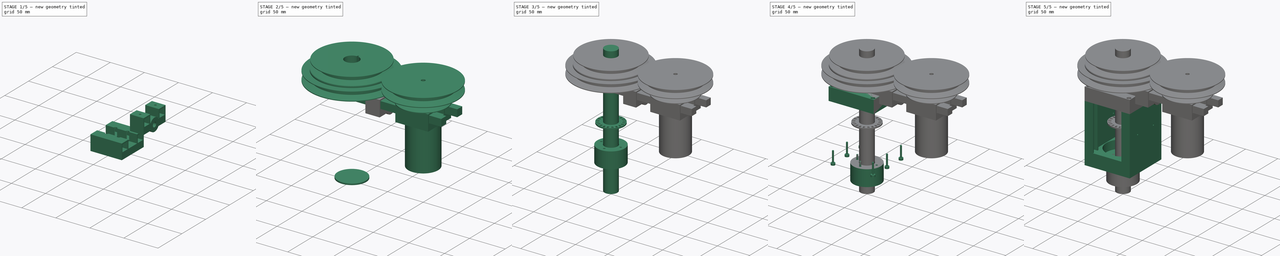
[diagram: build sequence overview — one tinted view per stage of 5, left to right]
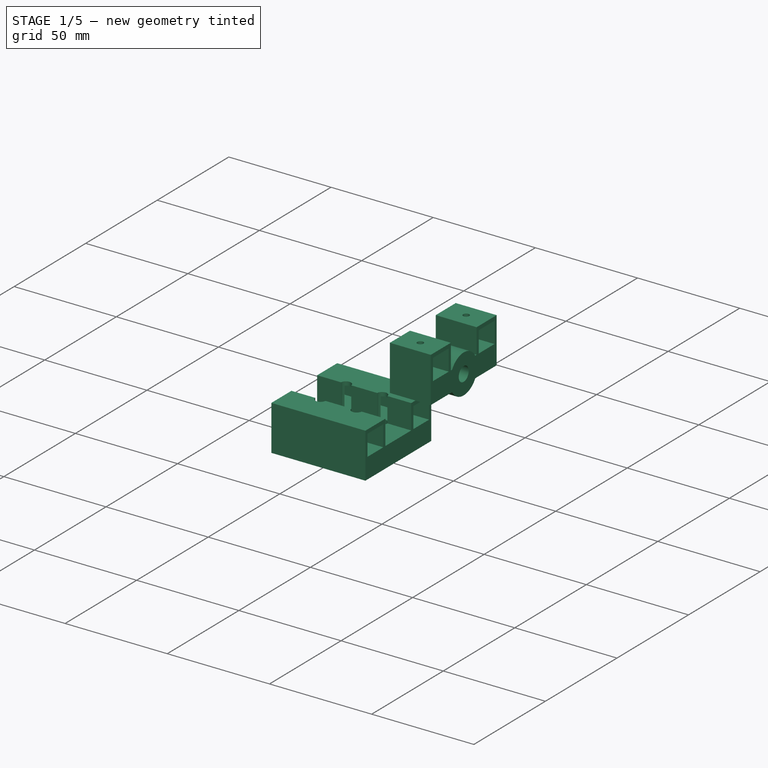
[diagram: stage 1 of 5 — iso view after this stage's code; geometry added in this stage tinted green]
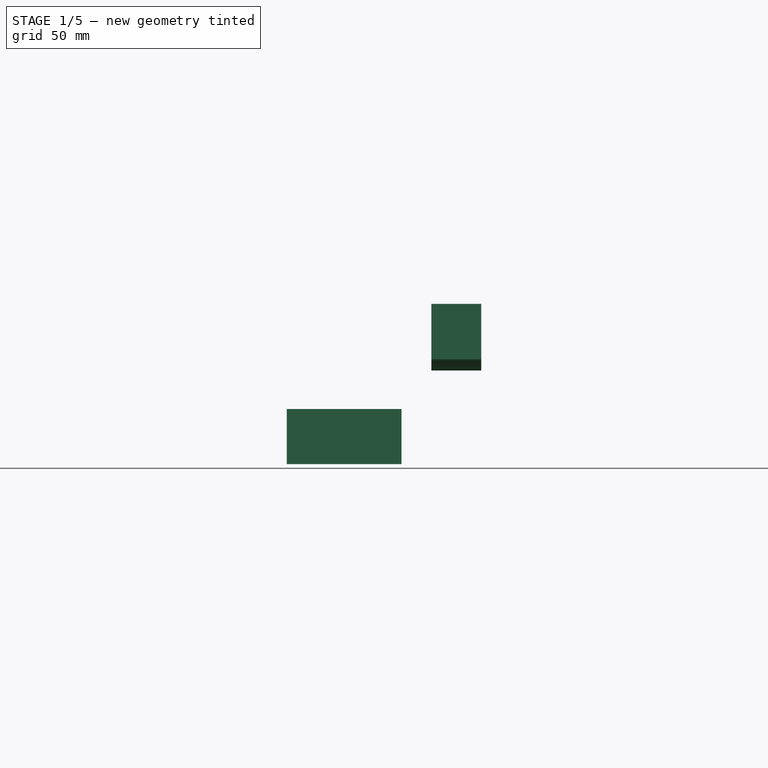
[diagram: stage 1 of 5 — front view after this stage's code; geometry added in this stage tinted green]
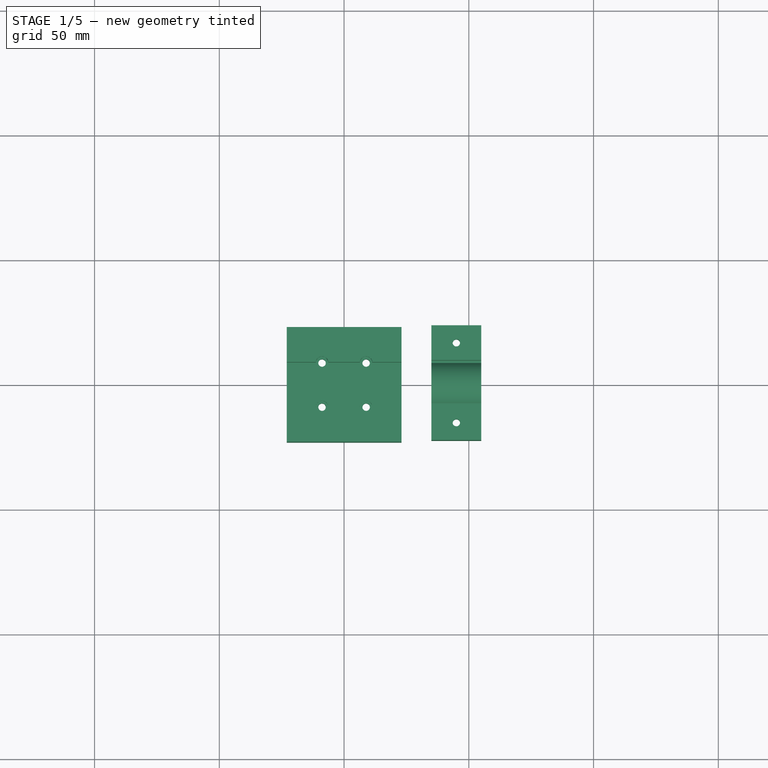
[diagram: stage 1 of 5 — top view after this stage's code; geometry added in this stage tinted green]
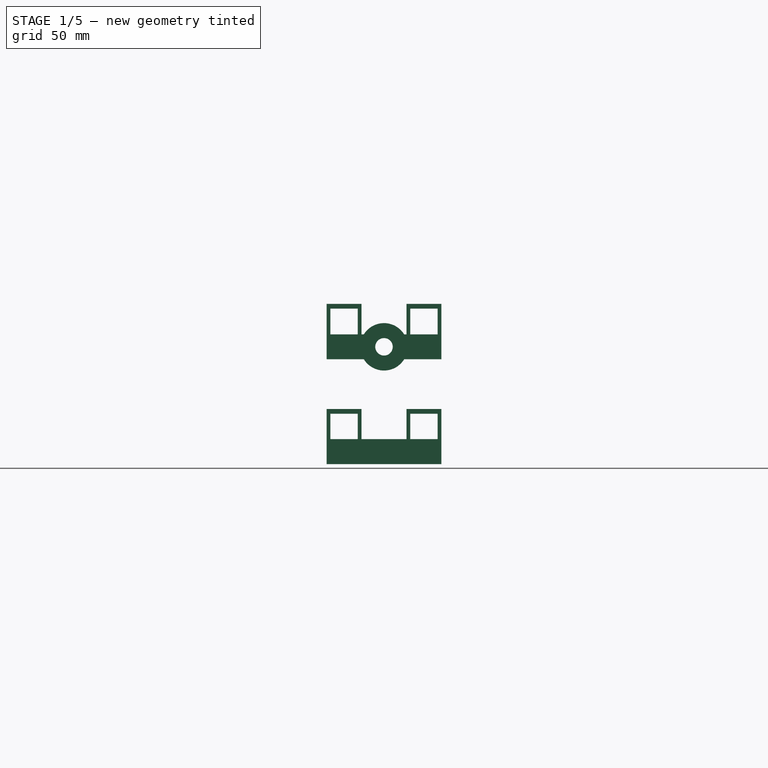
[diagram: stage 1 of 5 — right view after this stage's code; geometry added in this stage tinted green]
FCSTD DOCUMENT  (FreeCAD 0.18R16146 (Git))
Label: kombo
License: All rights reserved
LicenseURL: http://en.wikipedia.org/wiki/All_rights_reserved
objects: Part::Cylinder×95, Part::Cut×46, Part::MultiFuse×31, Part::Box×27, Part::Extrusion×20, Sketcher::SketchObject×5, Part::Revolution×4
note: 228 computed .brp shape members not serialized (recipe doc carries the construction recipe); baked Part::Feature solids carry a one-line shape summary decoded from their .brp

FEATURE [Part::Box] Box019  label="Würfel019"
  AttacherType = Attacher::AttachEngine3D
  Height = 10
  Length = 46
  Placement = pos=(-23,-23,58) rot=(0,0,1;0rad)
  Width = 46
FEATURE [Part::Cylinder] Cylinder079  label="Zylinder077"
  Angle = 360
  AttacherType = Attacher::AttachEngine3D
  Height = 10
  Placement = pos=(-12.5,0,58) rot=(0,0,1;0rad)
  Radius = 1.5
FEATURE [Part::Cylinder] Cylinder080  label="Zylinder078"
  Angle = 360
  AttacherType = Attacher::AttachEngine3D
  Height = 10
  Placement = pos=(12.5,0,58) rot=(0,0,1;0rad)
  Radius = 1.5
FEATURE [Part::Cylinder] Cylinder081  label="Zylinder079"
  Angle = 360
  AttacherType = Attacher::AttachEngine3D
  Height = 10
  Placement = pos=(0,12.5,58) rot=(0,0,1;0rad)
  Radius = 1.5
FEATURE [Part::Cylinder] Cylinder082  label="Zylinder080"
  Angle = 360
  AttacherType = Attacher::AttachEngine3D
  Height = 10
  Placement = pos=(0,-12.5,58) rot=(0,0,1;0rad)
  Radius = 1.5
FEATURE [Part::Cylinder] Cylinder083  label="Zylinder081"
  Angle = 360
  AttacherType = Attacher::AttachEngine3D
  Height = 2
  Placement = pos=(12.5,0,66) rot=(0,0,1;0rad)
  Radius = 2.5
FEATURE [Part::Cylinder] Cylinder084  label="Zylinder082"
  Angle = 360
  AttacherType = Attacher::AttachEngine3D
  Height = 2
  Placement = pos=(-12.5,0,66) rot=(0,0,1;0rad)
  Radius = 2.5
FEATURE [Part::Cylinder] Cylinder085  label="Zylinder083"
  Angle = 360
  AttacherType = Attacher::AttachEngine3D
  Height = 2
  Placement = pos=(0,12.5,66) rot=(0,0,1;0rad)
  Radius = 2.5
FEATURE [Part::Cylinder] Cylinder086  label="Zylinder084"
  Angle = 360
  AttacherType = Attacher::AttachEngine3D
  Height = 2
  Placement = pos=(0,-12.5,66) rot=(0,0,1;0rad)
  Radius = 2.5
FEATURE [Part::MultiFuse] Fusion023
  Placement = pos=(0,0,0) rot=(0,0,1;0.785398rad)
  Shapes = -> [Cylinder080,Cylinder083,Cylinder079,Cylinder084,Cylinder085,Cylinder086,Cylinder081,Cylinder082]
FEATURE [Part::Cut] Cut042
  Base = -> Box019
  Tool = -> Fusion023
FEATURE [Part::Box] Box020  label="Würfel020"
  AttacherType = Attacher::AttachEngine3D
  Height = 12.1
  Length = 46
  Placement = pos=(-23,9,68) rot=(0,0,1;0rad)
  Width = 14
FEATURE [Part::Box] Box022  label="Würfel022"
  AttacherType = Attacher::AttachEngine3D
  Height = 12.1
  Length = 46
  Placement = pos=(-23,-23,68) rot=(0,0,1;0rad)
  Width = 14
FEATURE [Part::Box] Box024  label="Würfel024"
  AttacherType = Attacher::AttachEngine3D
  Height = 10.2
  Length = 46
  Placement = pos=(-23,10.5,68) rot=(0,0,1;0rad)
  Width = 11
FEATURE [Part::Box] Box025  label="Würfel025"
  AttacherType = Attacher::AttachEngine3D
  Height = 10.2
  Length = 46
  Placement = pos=(-23,-21.5,68) rot=(0,0,1;0rad)
  Width = 11
FEATURE [Part::MultiFuse] Fusion025
  Shapes = -> [Box024,Box025]
FEATURE [Part::MultiFuse] Fusion026
  Shapes = -> [Box022,Box020]
FEATURE [Part::Cut] Cut044
  Base = -> Fusion026
  Tool = -> Fusion025
FEATURE [Part::Cylinder] Cylinder089  label="Zylinder086"
  Angle = 360
  AttacherType = Attacher::AttachEngine3D
  Height = 14
  Placement = pos=(12.5,0,68) rot=(0,0,1;0rad)
  Radius = 2.5
FEATURE [Part::Cylinder] Cylinder090  label="Zylinder087"
  Angle = 360
  AttacherType = Attacher::AttachEngine3D
  Height = 14
  Placement = pos=(-12.5,0,68) rot=(0,0,1;0rad)
  Radius = 2.5
FEATURE [Part::Cylinder] Cylinder091  label="Zylinder088"
  Angle = 360
  AttacherType = Attacher::AttachEngine3D
  Height = 14
  Placement = pos=(0,12.5,68) rot=(0,0,1;0rad)
  Radius = 2.5
FEATURE [Part::Cylinder] Cylinder092  label="Zylinder089"
  Angle = 360
  AttacherType = Attacher::AttachEngine3D
  Height = 14
  Placement = pos=(0,-12.5,68) rot=(0,0,1;0rad)
  Radius = 2.5
FEATURE [Part::MultiFuse] Fusion027
  Placement = pos=(0,0,0) rot=(0,0,1;0.785398rad)
  Shapes = -> [Cylinder089,Cylinder091,Cylinder092,Cylinder090]
FEATURE [Part::Cut] Cut045
  Base = -> Cut044
  Tool = -> Fusion027
FEATURE [Part::Box] Box026  label="Würfel026"
  AttacherType = Attacher::AttachEngine3D
  Height = 10
  Length = 20
  Placement = pos=(-23,-23,58) rot=(0,0,1;0rad)
  Width = 46
FEATURE [Part::Box] Box027  label="Würfel027"
  AttacherType = Attacher::AttachEngine3D
  Height = 12.2
  Length = 20
  Placement = pos=(-23,9,68) rot=(0,0,1;0rad)
  Width = 14
FEATURE [Part::Box] Box028  label="Würfel028"
  AttacherType = Attacher::AttachEngine3D
  Height = 12.2
  Length = 20
  Placement = pos=(-23,-23,68) rot=(0,0,1;0rad)
  Width = 14
FEATURE [Part::Box] Box029  label="Würfel029"
  AttacherType = Attacher::AttachEngine3D
  Height = 10.3
  Length = 20
  Placement = pos=(-23,10.5,68) rot=(0,0,1;0rad)
  Width = 11
FEATURE [Part::Box] Box030  label="Würfel030"
  AttacherType = Attacher::AttachEngine3D
  Height = 10.3
  Length = 20
  Placement = pos=(-23,-21.5,68) rot=(0,0,1;0rad)
  Width = 11
FEATURE [Part::Cylinder] Cylinder093  label="Zylinder090"
  Angle = 360
  AttacherType = Attacher::AttachEngine3D
  Height = 20
  Placement = pos=(-23,0,63) rot=(0,1,0;1.5708rad)
  Radius = 3.5
FEATURE [Part::Cylinder] Cylinder094  label="Zylinder091"
  Angle = 360
  AttacherType = Attacher::AttachEngine3D
  Height = 20
  Placement = pos=(-23,0,63) rot=(0,1,0;1.5708rad)
  Radius = 9.5
FEATURE [Part::MultiFuse] Fusion029
  Shapes = -> [Box028,Box027]
FEATURE [Part::MultiFuse] Fusion030
  Shapes = -> [Box029,Box030]
FEATURE [Part::Cut] Cut047
  Base = -> Fusion029
  Tool = -> Fusion030
FEATURE [Part::MultiFuse] Fusion031
  Shapes = -> [Box026,Cut047]
FEATURE [Part::MultiFuse] Fusion032
  Shapes = -> [Cylinder094,Fusion031]
FEATURE [Part::Cut] Cut048
  Base = -> Fusion032
  Tool = -> Cylinder093
FEATURE [Part::Cylinder] Cylinder095  label="Zylinder092"
  Angle = 360
  AttacherType = Attacher::AttachEngine3D
  Height = 25
  Radius = 1.5
FEATURE [Part::Cylinder] Cylinder096  label="Zylinder093"
  Angle = 360
  AttacherType = Attacher::AttachEngine3D
  Height = 4
  Radius = 3.5
FEATURE [Part::MultiFuse] Fusion033
  Placement = pos=(-13,-16,58) rot=(0,0,1;0rad)
  Shapes = -> [Cylinder095,Cylinder096]
FEATURE [Part::Cylinder] Cylinder097  label="Zylinder094"
  Angle = 360
  AttacherType = Attacher::AttachEngine3D
  Height = 4
  Radius = 3.5
FEATURE [Part::Cylinder] Cylinder098  label="Zylinder095"
  Angle = 360
  AttacherType = Attacher::AttachEngine3D
  Height = 25
  Radius = 1.5
FEATURE [Part::MultiFuse] Fusion034
  Placement = pos=(-13,16,58) rot=(0,0,1;0rad)
  Shapes = -> [Cylinder098,Cylinder097]
FEATURE [Part::MultiFuse] Fusion035
  Shapes = -> [Fusion033,Fusion034]
FEATURE [Part::Cut] Cut049  label="belt_tensioner"
  Base = -> Cut048
  Placement = pos=(58,0,42) rot=(0,0,1;0rad)
  Tool = -> Fusion035
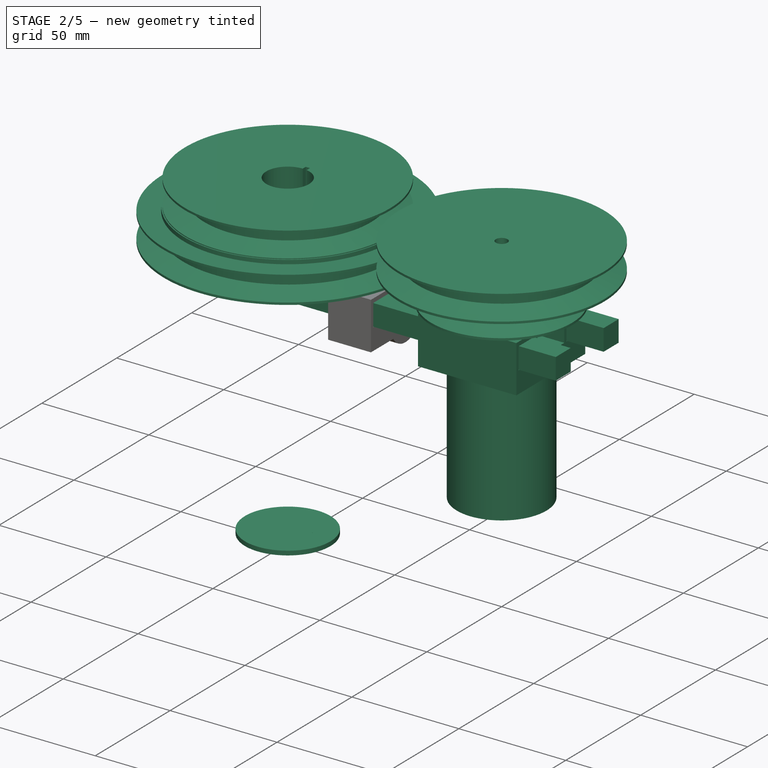
[diagram: stage 2 of 5 — iso view after this stage's code; geometry added in this stage tinted green]
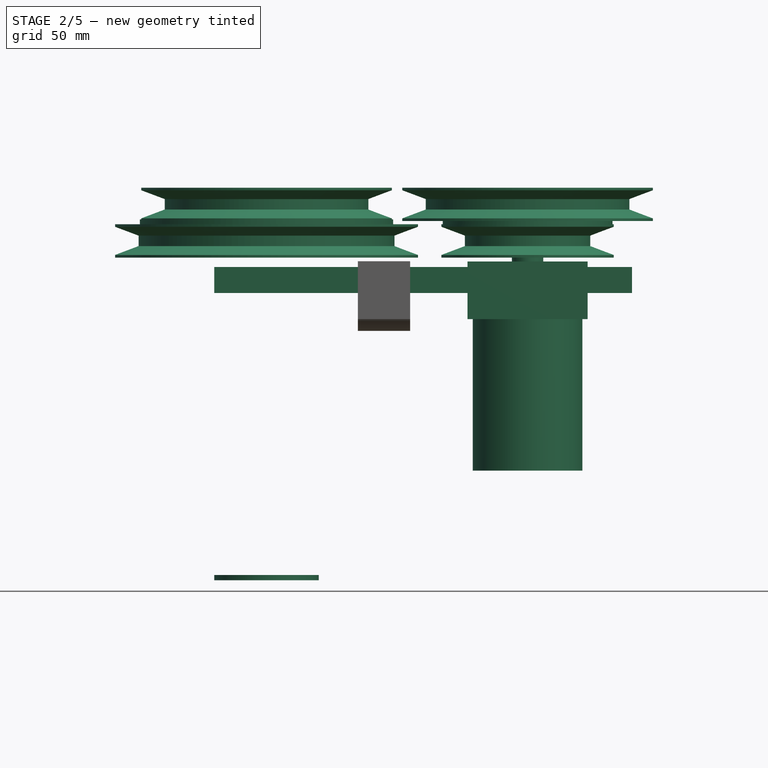
[diagram: stage 2 of 5 — front view after this stage's code; geometry added in this stage tinted green]
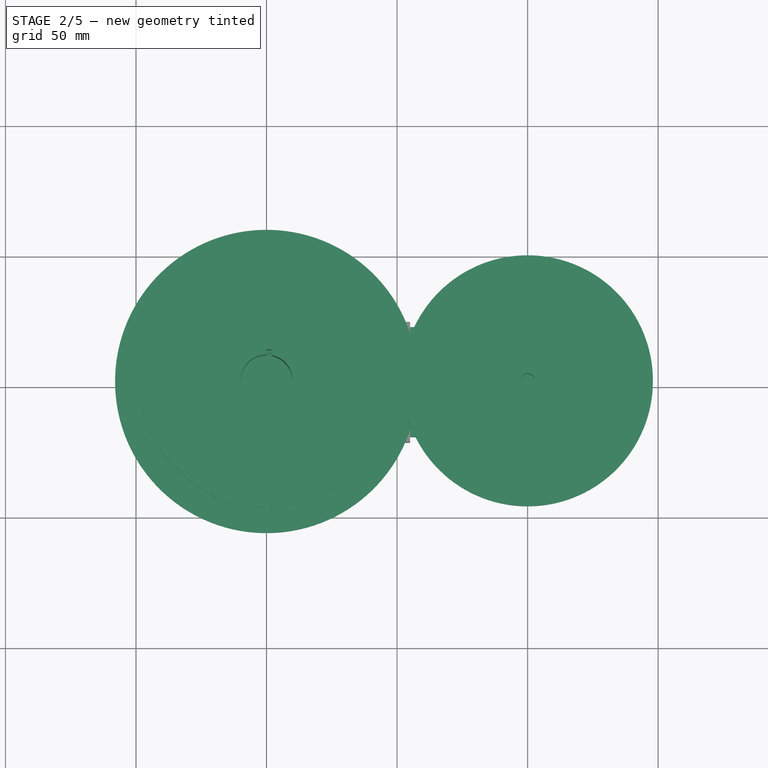
[diagram: stage 2 of 5 — top view after this stage's code; geometry added in this stage tinted green]
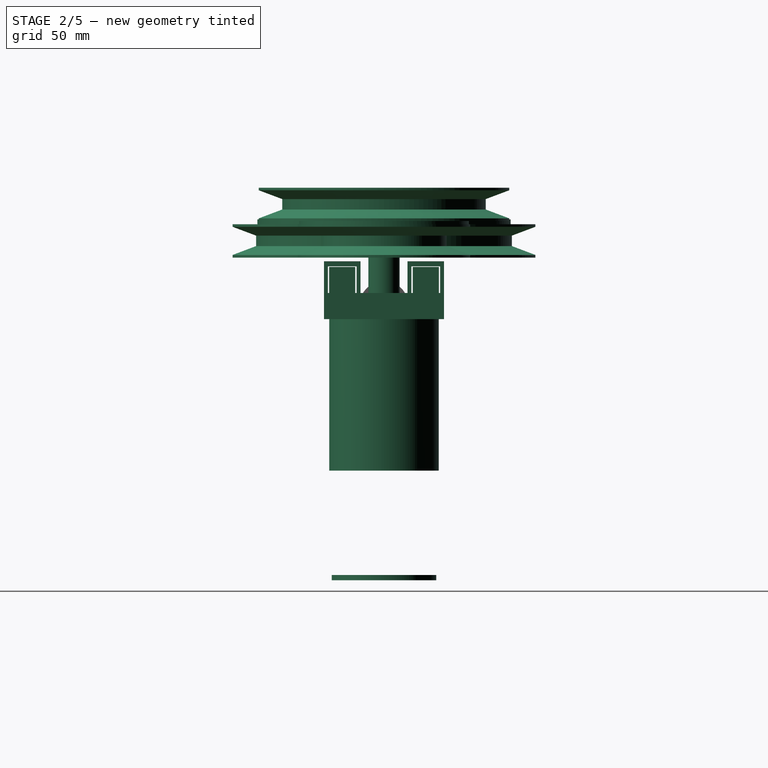
[diagram: stage 2 of 5 — right view after this stage's code; geometry added in this stage tinted green]
FEATURE [Part::Cylinder] Cylinder057  label="Zylinder056"
  Angle = 360
  AttacherType = Attacher::AttachEngine3D
  Height = 2
  Radius = 10.05
FEATURE [Part::Cylinder] Cylinder058  label="Zylinder057"
  Angle = 360
  AttacherType = Attacher::AttachEngine3D
  Height = 2
  Radius = 20
FEATURE [Sketcher::SketchObject] Sketch005  label="r40mm002"
  Placement = pos=(0,0,0) rot=(1,0,0;1.5708rad)
  sketch-geometry (8):
    g0: LineSegment StartX=-8 StartY=5.38155 StartZ=0 EndX=1 EndY=2 EndZ=0
    g1: LineSegment StartX=-8 StartY=-5.3979 StartZ=0 EndX=1 EndY=-2 EndZ=0
    g2: LineSegment StartX=1 StartY=-2 StartZ=0 EndX=1 EndY=2 EndZ=0
    g3: LineSegment StartX=-8 StartY=6.33661 StartZ=0 EndX=40 EndY=6.33661 EndZ=0
    g4: LineSegment StartX=-8 StartY=-6.40963 StartZ=0 EndX=40 EndY=-6.40963 EndZ=0
    g5: LineSegment StartX=40 StartY=-6.40963 StartZ=0 EndX=40 EndY=6.33661 EndZ=0
    g6: LineSegment StartX=-8 StartY=-5.3979 StartZ=0 EndX=-8 EndY=-6.40963 EndZ=0
    g7: LineSegment StartX=-8 StartY=5.38155 StartZ=0 EndX=-8 EndY=6.33661 EndZ=0
  constraints (13):
    c: Coincident(g2,g0)
    c: Vertical(g2)
    c: Horizontal(g3)
    c: Horizontal(g4)
    c: Coincident(g5,g4)
    c: Coincident(g5,g3)
    c: Vertical(g5)
    c: Coincident(g6,g1)
    c: Coincident(g6,g4)
    c: Vertical(g6)
    c: Coincident(g7,g0)
    c: Coincident(g7,g3)
    c: Vertical(g7)
FEATURE [Part::Revolution] Revolve006
  Angle = 360
  Axis = (0,0,1)
  AxisLink = -> Sketch005 [Edge6]
  Base = (40,0,6.33661)
  FaceMakerClass = Part::FaceMakerBullseye
  Placement = pos=(-40,0,0) rot=(0,0,1;0rad)
  Solid = true
  Source = -> Sketch005
  Symmetric = false
FEATURE [Part::Cylinder] Cylinder061  label="Zylinder060"
  Angle = 360
  AttacherType = Attacher::AttachEngine3D
  Height = 20
  Placement = pos=(0,0,-10) rot=(0,0,1;0rad)
  Radius = 10
FEATURE [Part::Cut] Cut034
  Base = -> Revolve006
  Tool = -> Cylinder061
FEATURE [Part::Box] Box014  label="Würfel014"
  AttacherType = Attacher::AttachEngine3D
  Height = 20
  Length = 2
  Placement = pos=(0,0,-10) rot=(0,0,1;0rad)
  Width = 12
FEATURE [Part::Cut] Cut033
  Base = -> Cut034
  Placement = pos=(0,0,14) rot=(0,0,1;0rad)
  Tool = -> Box014
FEATURE [Sketcher::SketchObject] Sketch006  label="r50mm001"
  Placement = pos=(0,0,0) rot=(1,0,0;1.5708rad)
  sketch-geometry (8):
    g0: LineSegment StartX=-8 StartY=5.38155 StartZ=0 EndX=1 EndY=2 EndZ=0
    g1: LineSegment StartX=-8 StartY=-5.3979 StartZ=0 EndX=1 EndY=-2 EndZ=0
    g2: LineSegment StartX=1 StartY=-2 StartZ=0 EndX=1 EndY=2 EndZ=0
    g3: LineSegment StartX=-8 StartY=6.33661 StartZ=0 EndX=50 EndY=6.33661 EndZ=0
    g4: LineSegment StartX=-8 StartY=-6.40963 StartZ=0 EndX=50 EndY=-6.40963 EndZ=0
    g5: LineSegment StartX=50 StartY=-6.40963 StartZ=0 EndX=50 EndY=6.33661 EndZ=0
    g6: LineSegment StartX=-8 StartY=-5.3979 StartZ=0 EndX=-8 EndY=-6.40963 EndZ=0
    g7: LineSegment StartX=-8 StartY=5.38155 StartZ=0 EndX=-8 EndY=6.33661 EndZ=0
  constraints (13):
    c: Coincident(g2,g0)
    c: Vertical(g2)
    c: Horizontal(g3)
    c: Horizontal(g4)
    c: Coincident(g5,g4)
    c: Coincident(g5,g3)
    c: Vertical(g5)
    c: Coincident(g6,g1)
    c: Coincident(g6,g4)
    c: Vertical(g6)
    c: Coincident(g7,g0)
    c: Coincident(g7,g3)
    c: Vertical(g7)
FEATURE [Part::Revolution] Revolve007
  Angle = 360
  Axis = (0,0,1)
  AxisLink = -> Sketch006 [Edge6]
  Base = (50,0,6.33661)
  FaceMakerClass = Part::FaceMakerBullseye
  Placement = pos=(-50,0,0) rot=(0,0,1;0rad)
  Solid = true
  Source = -> Sketch006
  Symmetric = false
FEATURE [Part::Cylinder] Cylinder064  label="Zylinder063"
  Angle = 360
  AttacherType = Attacher::AttachEngine3D
  Height = 20
  Placement = pos=(0,0,-10) rot=(0,0,1;0rad)
  Radius = 10
FEATURE [Part::Box] Box015  label="Würfel015"
  AttacherType = Attacher::AttachEngine3D
  Height = 20
  Length = 2
  Placement = pos=(0,0,-10) rot=(0,0,1;0rad)
  Width = 12
FEATURE [Part::MultiFuse] Fusion016
  Shapes = -> [Box015,Cylinder064]
FEATURE [Part::Cut] Cut032
  Base = -> Revolve007
  Tool = -> Fusion016
FEATURE [Part::Cylinder] Cylinder065  label="Zylinder064"
  Angle = 360
  AttacherType = Attacher::AttachEngine3D
  Height = 20
  Placement = pos=(0,0,-10) rot=(0,0,1;0rad)
  Radius = 10
FEATURE [Part::Box] Box016  label="Würfel016"
  AttacherType = Attacher::AttachEngine3D
  Height = 20
  Length = 2
  Placement = pos=(0,0,-10) rot=(0,0,1;0rad)
  Width = 12
FEATURE [Part::MultiFuse] Fusion015
  Shapes = -> [Cylinder065,Box016]
FEATURE [Part::Cylinder] Cylinder066  label="Zylinder065"
  Angle = 360
  AttacherType = Attacher::AttachEngine3D
  Height = 2
  Placement = pos=(0,0,0.2) rot=(0,0,1;0rad)
  Radius = 48.5
FEATURE [Part::Cut] Cut035  label="Dist_40mm"
  Base = -> Cylinder066
  Placement = pos=(0,0,6) rot=(0,0,1;0rad)
  Tool = -> Fusion015
FEATURE [Part::MultiFuse] Fusion017  label="r50r40"
  Placement = pos=(0,0,130) rot=(0,0,1;0rad)
  Shapes = -> [Cut035,Cut032,Cut033]
FEATURE [Sketcher::SketchObject] Sketch007  label="r40mm003"
  Placement = pos=(0,0,0) rot=(1,0,0;1.5708rad)
  sketch-geometry (8):
    g0: LineSegment StartX=-8 StartY=5.38155 StartZ=0 EndX=1 EndY=2 EndZ=0
    g1: LineSegment StartX=-8 StartY=-5.3979 StartZ=0 EndX=1 EndY=-2 EndZ=0
    g2: LineSegment StartX=1 StartY=-2 StartZ=0 EndX=1 EndY=2 EndZ=0
    g3: LineSegment StartX=-8 StartY=6.33661 StartZ=0 EndX=40 EndY=6.33661 EndZ=0
    g4: LineSegment StartX=-8 StartY=-6.40963 StartZ=0 EndX=40 EndY=-6.40963 EndZ=0
    g5: LineSegment StartX=40 StartY=-6.40963 StartZ=0 EndX=40 EndY=6.33661 EndZ=0
    g6: LineSegment StartX=-8 StartY=-5.3979 StartZ=0 EndX=-8 EndY=-6.40963 EndZ=0
    g7: LineSegment StartX=-8 StartY=5.38155 StartZ=0 EndX=-8 EndY=6.33661 EndZ=0
  constraints (13):
    c: Coincident(g2,g0)
    c: Vertical(g2)
    c: Horizontal(g3)
    c: Horizontal(g4)
    c: Coincident(g5,g4)
    c: Coincident(g5,g3)
    c: Vertical(g5)
    c: Coincident(g6,g1)
    c: Coincident(g6,g4)
    c: Vertical(g6)
    c: Coincident(g7,g0)
    c: Coincident(g7,g3)
    c: Vertical(g7)
FEATURE [Part::Revolution] Revolve008
  Angle = 360
  Axis = (0,0,1)
  AxisLink = -> Sketch007 [Edge6]
  Base = (40,0,6.33661)
  FaceMakerClass = Part::FaceMakerBullseye
  Placement = pos=(-40,0,0) rot=(0,0,1;0rad)
  Solid = true
  Source = -> Sketch007
  Symmetric = false
FEATURE [Part::Cylinder] Cylinder067  label="Zylinder066"
  Angle = 360
  AttacherType = Attacher::AttachEngine3D
  Height = 20
  Placement = pos=(0,0,-10) rot=(0,0,1;0rad)
  Radius = 2.75
FEATURE [Part::Cylinder] Cylinder069  label="Zylinder068"
  Angle = 360
  AttacherType = Attacher::AttachEngine3D
  Height = 20
  Placement = pos=(0,0,-10) rot=(0,0,1;0rad)
  Radius = 2.75
FEATURE [Part::Cylinder] Cylinder070  label="Zylinder069"
  Angle = 360
  AttacherType = Attacher::AttachEngine3D
  Height = 2
  Placement = pos=(0,0,0.2) rot=(0,0,1;0rad)
  Radius = 32.5
FEATURE [Part::Cut] Cut038  label="Dist_25mm"
  Base = -> Cylinder070
  Placement = pos=(0,0,6) rot=(0,0,1;0rad)
  Tool = -> Cylinder069
FEATURE [Sketcher::SketchObject] Sketch008  label="r25mm001"
  Placement = pos=(0,0,0) rot=(1,0,0;1.5708rad)
  sketch-geometry (8):
    g0: LineSegment StartX=-8 StartY=5.38155 StartZ=0 EndX=1 EndY=2 EndZ=0
    g1: LineSegment StartX=-8 StartY=-5.3979 StartZ=0 EndX=1 EndY=-2 EndZ=0
    g2: LineSegment StartX=1 StartY=-2 StartZ=0 EndX=1 EndY=2 EndZ=0
    g3: LineSegment StartX=-8 StartY=6.33661 StartZ=0 EndX=24.9919 EndY=6.33661 EndZ=0
    g4: LineSegment StartX=-8 StartY=-6.40963 StartZ=0 EndX=24.9919 EndY=-6.40963 EndZ=0
    g5: LineSegment StartX=24.9919 StartY=-6.40963 StartZ=0 EndX=24.9919 EndY=6.33661 EndZ=0
    g6: LineSegment StartX=-8 StartY=-5.3979 StartZ=0 EndX=-8 EndY=-6.40963 EndZ=0
    g7: LineSegment StartX=-8 StartY=5.38155 StartZ=0 EndX=-8 EndY=6.33661 EndZ=0
  constraints (13):
    c: Coincident(g2,g0)
    c: Vertical(g2)
    c: Horizontal(g3)
    c: Horizontal(g4)
    c: Coincident(g5,g4)
    c: Coincident(g5,g3)
    c: Vertical(g5)
    c: Coincident(g6,g1)
    c: Coincident(g6,g4)
    c: Vertical(g6)
    c: Coincident(g7,g0)
    c: Coincident(g7,g3)
    c: Vertical(g7)
FEATURE [Part::Revolution] Revolve009
  Angle = 360
  Axis = (0,0,1)
  AxisLink = -> Sketch008 [Edge6]
  Base = (24.9919,0,6.33661)
  FaceMakerClass = Part::FaceMakerBullseye
  Placement = pos=(-25,0,0) rot=(0,0,1;0rad)
  Solid = true
  Source = -> Sketch008
  Symmetric = false
FEATURE [Part::Cylinder] Cylinder072  label="Zylinder071"
  Angle = 360
  AttacherType = Attacher::AttachEngine3D
  Height = 10
  Placement = pos=(0,0,-7.8) rot=(0,0,1;0rad)
  Radius = 2.75
FEATURE [Part::Cut] Cut039
  Base = -> Revolve009
  Tool = -> Cylinder072
FEATURE [Part::Cut] Cut040
  Base = -> Revolve008
  Placement = pos=(0,0,14) rot=(0,0,1;0rad)
  Tool = -> Cylinder067
FEATURE [Part::MultiFuse] Fusion018  label="r25r40"
  Placement = pos=(100,0,130) rot=(0,0,1;0rad)
  Shapes = -> [Cut038,Cut040,Cut039]
FEATURE [Part::Box] Box017  label="Würfel017"
  AttacherType = Attacher::AttachEngine3D
  Height = 10
  Length = 160
  Placement = pos=(-20,11,110) rot=(0,0,1;0rad)
  Width = 10
FEATURE [Part::Box] Box018  label="Würfel018"
  AttacherType = Attacher::AttachEngine3D
  Height = 10
  Length = 160
  Placement = pos=(-20,-21,110) rot=(0,0,1;0rad)
  Width = 10
FEATURE [Part::Cylinder] Cylinder073  label="Zylinder072"
  Angle = 360
  AttacherType = Attacher::AttachEngine3D
  Height = 58
  Radius = 21
FEATURE [Part::Cylinder] Cylinder074  label="Zylinder073"
  Angle = 360
  AttacherType = Attacher::AttachEngine3D
  Height = 3
  Placement = pos=(12.5,0,55) rot=(0,0,1;0rad)
  Radius = 1.25
FEATURE [Part::Cylinder] Cylinder075  label="Zylinder074"
  Angle = 360
  AttacherType = Attacher::AttachEngine3D
  Height = 3
  Placement = pos=(-12.5,0,55) rot=(0,0,1;0rad)
  Radius = 1.25
FEATURE [Part::Cylinder] Cylinder076  label="Zylinder075"
  Angle = 360
  AttacherType = Attacher::AttachEngine3D
  Height = 3
  Placement = pos=(0,12.5,55) rot=(0,0,1;0rad)
  Radius = 1.25
FEATURE [Part::Cylinder] Cylinder077  label="Zylinder076"
  Angle = 360
  AttacherType = Attacher::AttachEngine3D
  Height = 3
  Placement = pos=(0,-12.5,55) rot=(0,0,1;0rad)
  Radius = 1.25
FEATURE [Part::MultiFuse] Fusion019
  Placement = pos=(0,0,0) rot=(0,0,1;0.785398rad)
  Shapes = -> [Cylinder074,Cylinder076,Cylinder075,Cylinder077]
FEATURE [Part::Cut] Cut041  label="housing"
  Base = -> Cylinder073
  Tool = -> Fusion019
FEATURE [Part::Cylinder] Cylinder078  label="axis001"
  Angle = 360
  AttacherType = Attacher::AttachEngine3D
  Height = 30
  Placement = pos=(0,0,58) rot=(0,0,1;0rad)
  Radius = 6
FEATURE [Part::MultiFuse] Fusion022  label="Motor"
  Placement = pos=(100,0,42) rot=(0,0,1;0rad)
  Shapes = -> [Cut041,Cylinder078]
FEATURE [Part::Cylinder] Cylinder087  label="axis002"
  Angle = 360
  AttacherType = Attacher::AttachEngine3D
  Height = 10
  Placement = pos=(0,0,58) rot=(0,0,1;0rad)
  Radius = 6
FEATURE [Part::Cut] Cut043
  Base = -> Cut042
  Tool = -> Cylinder087
FEATURE [Part::Cylinder] Cylinder088  label="Zylinder085"
  Angle = 360
  AttacherType = Attacher::AttachEngine3D
  Height = 24
  Placement = pos=(-23,0,63) rot=(0,1,0;1.5708rad)
  Radius = 2.1
FEATURE [Part::MultiFuse] Fusion028
  Shapes = -> [Cut043,Cut045]
FEATURE [Part::Cut] Cut046  label="Motor_Mount"
  Base = -> Fusion028
  Placement = pos=(100,0,42) rot=(0,0,1;0rad)
  Tool = -> Cylinder088
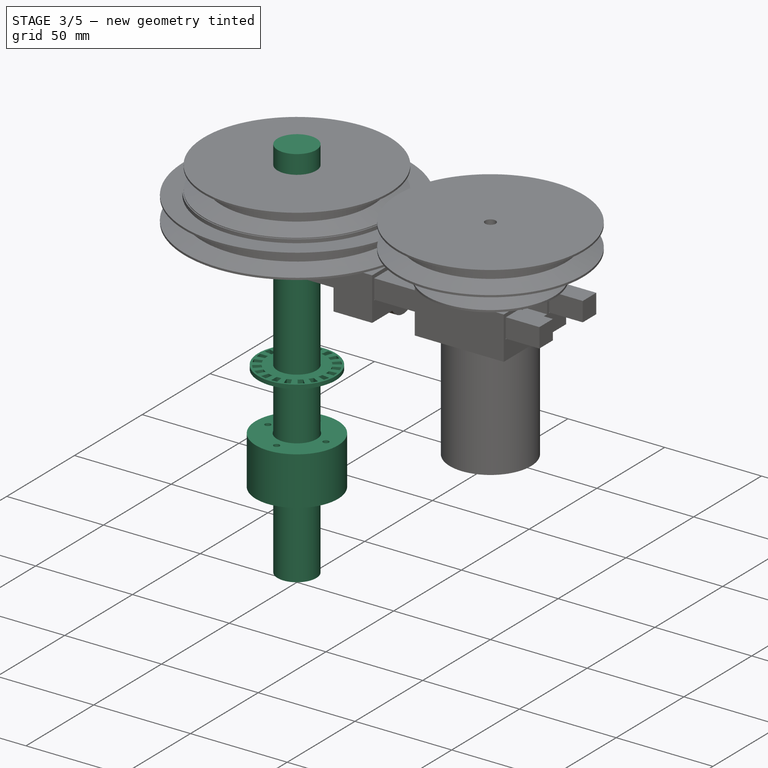
[diagram: stage 3 of 5 — iso view after this stage's code; geometry added in this stage tinted green]
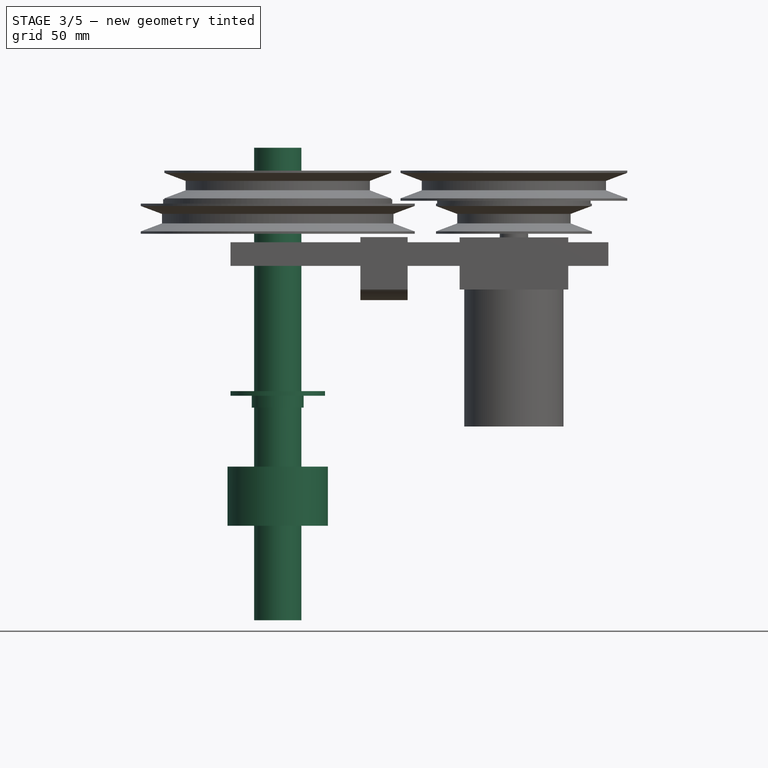
[diagram: stage 3 of 5 — front view after this stage's code; geometry added in this stage tinted green]
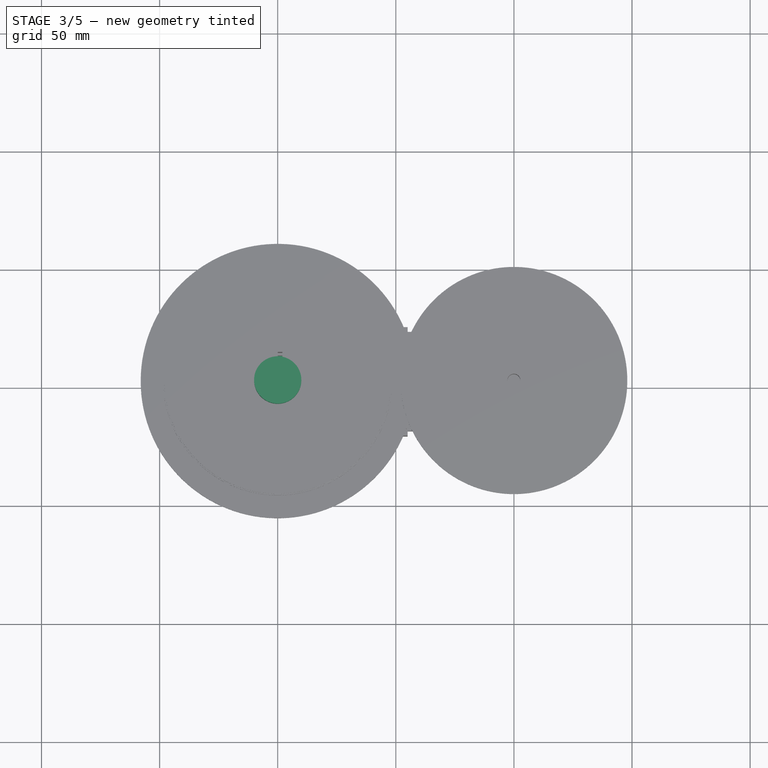
[diagram: stage 3 of 5 — top view after this stage's code; geometry added in this stage tinted green]
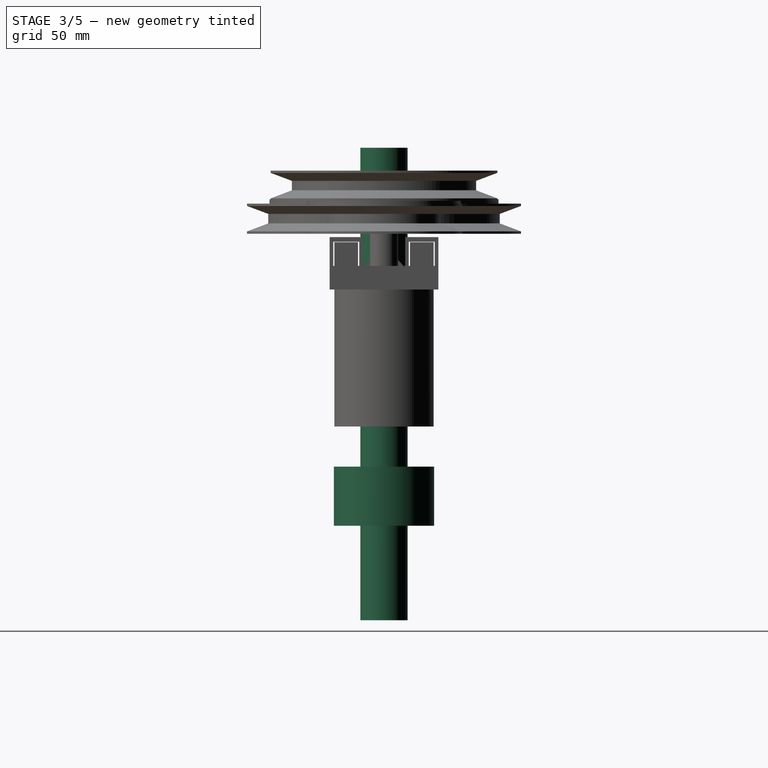
[diagram: stage 3 of 5 — right view after this stage's code; geometry added in this stage tinted green]
FEATURE [Part::Cylinder] Cylinder046  label="Zylinder046"
  Angle = 360
  AttacherType = Attacher::AttachEngine3D
  Height = 25
  Placement = pos=(-15,0,0) rot=(0,0,1;0rad)
  Radius = 1.5
FEATURE [Part::Cylinder] Cylinder047  label="Zylinder047"
  Angle = 360
  AttacherType = Attacher::AttachEngine3D
  Height = 25
  Placement = pos=(15,0,0) rot=(0,0,1;0rad)
  Radius = 1.5
FEATURE [Part::Cylinder] Cylinder048  label="Zylinder048"
  Angle = 360
  AttacherType = Attacher::AttachEngine3D
  Height = 25
  Radius = 21.25
FEATURE [Part::Cylinder] Cylinder049  label="Zylinder049"
  Angle = 360
  AttacherType = Attacher::AttachEngine3D
  Height = 25
  Placement = pos=(0,-15,0) rot=(0,0,1;0rad)
  Radius = 1.5
FEATURE [Part::Cylinder] Cylinder050  label="Zylinder050"
  Angle = 360
  AttacherType = Attacher::AttachEngine3D
  Height = 25
  Placement = pos=(0,15,0) rot=(0,0,1;0rad)
  Radius = 1.5
FEATURE [Part::Cylinder] Cylinder051  label="Zylinder051"
  Angle = 360
  AttacherType = Attacher::AttachEngine3D
  Height = 25
  Radius = 10.25
FEATURE [Part::Cut] Cut020
  Base = -> Cylinder048
  Tool = -> Cylinder051
FEATURE [Part::Cut] Cut024
  Base = -> Cut020
  Tool = -> Cylinder047
FEATURE [Part::Cut] Cut021
  Base = -> Cut024
  Tool = -> Cylinder050
FEATURE [Part::Cut] Cut018
  Base = -> Cut021
  Tool = -> Cylinder046
FEATURE [Part::Cut] Cut019
  Base = -> Cut018
  Tool = -> Cylinder049
FEATURE [Part::Cylinder] Cylinder052  label="Zylinder052"
  Angle = 360
  AttacherType = Attacher::AttachEngine3D
  Height = 5
  Placement = pos=(15,0,0) rot=(0,0,1;0rad)
  Radius = 3
FEATURE [Part::Cut] Cut022
  Base = -> Cut019
  Tool = -> Cylinder052
FEATURE [Part::Cylinder] Cylinder054  label="Zylinder054"
  Angle = 360
  AttacherType = Attacher::AttachEngine3D
  Height = 5
  Placement = pos=(-15,0,0) rot=(0,0,1;0rad)
  Radius = 3
FEATURE [Part::Cylinder] Cylinder055  label="Zylinder055"
  Angle = 360
  AttacherType = Attacher::AttachEngine3D
  Height = 5
  Placement = pos=(0,-15,0) rot=(0,0,1;0rad)
  Radius = 3
FEATURE [Part::Cut] Cut023
  Base = -> Cut022
  Tool = -> Cylinder055
FEATURE [Part::Cut] Cut025
  Base = -> Cut023
  Tool = -> Cylinder054
FEATURE [Part::Cylinder] Cylinder056  label="axis"
  Angle = 360
  AttacherType = Attacher::AttachEngine3D
  Height = 200
  Placement = pos=(0,0,-40) rot=(0,0,1;0rad)
  Radius = 10
FEATURE [Part::Cylinder] Cylinder059  label="Zylinder058"
  Angle = 360
  AttacherType = Attacher::AttachEngine3D
  Height = 5
  Placement = pos=(40,0,0) rot=(0,0,1;0rad)
  Radius = 10
FEATURE [Part::Cylinder] Cylinder060  label="Zylinder059"
  Angle = 360
  AttacherType = Attacher::AttachEngine3D
  Height = 5
  Placement = pos=(40,0,0) rot=(0,0,1;0rad)
  Radius = 11
FEATURE [Part::Cut] Cut028
  Base = -> Cylinder060
  Placement = pos=(-40,0,-5) rot=(0,0,1;0rad)
  Tool = -> Cylinder059
FEATURE [Sketcher::SketchObject] Sketch004
  sketch-geometry (8):
    g0: ArcOfCircle CenterX=0 CenterY=0 CenterZ=0 NormalX=0 NormalY=0 NormalZ=1 AngleXU=0 Radius=19 StartAngle=0 EndAngle=0.15708
    g1: LineSegment StartX=19 StartY=0 StartZ=0 EndX=15 EndY=0 EndZ=0
    g2: LineSegment StartX=18.7661 StartY=2.97225 StartZ=0 EndX=14.8153 EndY=2.34652 EndZ=0
    g3: ArcOfCircle CenterX=0 CenterY=0 CenterZ=0 NormalX=0 NormalY=0 NormalZ=1 AngleXU=0 Radius=15 StartAngle=0 EndAngle=0.15708
    g4: GeomPoint X=14.8153 Y=2.34652 Z=0
    g5: GeomPoint X=15 Y=0 Z=0
    g6: GeomPoint X=19.0173 Y=-0.000551 Z=0
    g7: GeomPoint X=18.7661 Y=2.97226 Z=0
FEATURE [Part::Extrusion] Extrude
  Base = -> Sketch004
  Dir = (0,0,1)
  DirMode = 2
  FaceMakerClass = Part::FaceMakerBullseye
  LengthFwd = 3
  LengthRev = 0
  Solid = true
  Symmetric = false
FEATURE [Part::Extrusion] Extrude001
  Base = -> Sketch004
  Dir = (0,0,1)
  DirMode = 2
  FaceMakerClass = Part::FaceMakerBullseye
  LengthFwd = 3
  LengthRev = 0
  Placement = pos=(0,0,0) rot=(0,0,1;0.314159rad)
  Solid = true
  Symmetric = false
FEATURE [Part::Extrusion] Extrude002
  Base = -> Sketch004
  Dir = (0,0,1)
  DirMode = 2
  FaceMakerClass = Part::FaceMakerBullseye
  LengthFwd = 3
  LengthRev = 0
  Placement = pos=(0,0,0) rot=(0,0,1;0.628319rad)
  Solid = true
  Symmetric = false
FEATURE [Part::Extrusion] Extrude003
  Base = -> Sketch004
  Dir = (0,0,1)
  DirMode = 2
  FaceMakerClass = Part::FaceMakerBullseye
  LengthFwd = 3
  LengthRev = 0
  Placement = pos=(0,0,0) rot=(0,0,1;0.942478rad)
  Solid = true
  Symmetric = false
FEATURE [Part::Extrusion] Extrude004
  Base = -> Sketch004
  Dir = (0,0,1)
  DirMode = 2
  FaceMakerClass = Part::FaceMakerBullseye
  LengthFwd = 3
  LengthRev = 0
  Placement = pos=(0,0,0) rot=(0,0,1;1.25664rad)
  Solid = true
  Symmetric = false
FEATURE [Part::Extrusion] Extrude005
  Base = -> Sketch004
  Dir = (0,0,1)
  DirMode = 2
  FaceMakerClass = Part::FaceMakerBullseye
  LengthFwd = 3
  LengthRev = 0
  Placement = pos=(0,0,0) rot=(0,0,1;1.5708rad)
  Solid = true
  Symmetric = false
FEATURE [Part::Extrusion] Extrude006
  Base = -> Sketch004
  Dir = (0,0,1)
  DirMode = 2
  FaceMakerClass = Part::FaceMakerBullseye
  LengthFwd = 3
  LengthRev = 0
  Placement = pos=(0,0,0) rot=(0,0,1;1.88496rad)
  Solid = true
  Symmetric = false
FEATURE [Part::Extrusion] Extrude007
  Base = -> Sketch004
  Dir = (0,0,1)
  DirMode = 2
  FaceMakerClass = Part::FaceMakerBullseye
  LengthFwd = 3
  LengthRev = 0
  Placement = pos=(0,0,0) rot=(0,0,1;2.19911rad)
  Solid = true
  Symmetric = false
FEATURE [Part::Extrusion] Extrude008
  Base = -> Sketch004
  Dir = (0,0,1)
  DirMode = 2
  FaceMakerClass = Part::FaceMakerBullseye
  LengthFwd = 3
  LengthRev = 0
  Placement = pos=(0,0,0) rot=(0,0,1;2.51327rad)
  Solid = true
  Symmetric = false
FEATURE [Part::Extrusion] Extrude009
  Base = -> Sketch004
  Dir = (0,0,1)
  DirMode = 2
  FaceMakerClass = Part::FaceMakerBullseye
  LengthFwd = 3
  LengthRev = 0
  Placement = pos=(0,0,0) rot=(0,0,1;2.82743rad)
  Solid = true
  Symmetric = false
FEATURE [Part::Extrusion] Extrude010
  Base = -> Sketch004
  Dir = (0,0,1)
  DirMode = 2
  FaceMakerClass = Part::FaceMakerBullseye
  LengthFwd = 3
  LengthRev = 0
  Placement = pos=(0,0,0) rot=(0,0,1;3.14159rad)
  Solid = true
  Symmetric = false
FEATURE [Part::Extrusion] Extrude011
  Base = -> Sketch004
  Dir = (0,0,1)
  DirMode = 2
  FaceMakerClass = Part::FaceMakerBullseye
  LengthFwd = 3
  LengthRev = 0
  Placement = pos=(0,0,0) rot=(0,0,1;3.45575rad)
  Solid = true
  Symmetric = false
FEATURE [Part::Extrusion] Extrude012
  Base = -> Sketch004
  Dir = (0,0,1)
  DirMode = 2
  FaceMakerClass = Part::FaceMakerBullseye
  LengthFwd = 3
  LengthRev = 0
  Placement = pos=(0,0,0) rot=(0,0,1;3.76991rad)
  Solid = true
  Symmetric = false
FEATURE [Part::Extrusion] Extrude013
  Base = -> Sketch004
  Dir = (0,0,1)
  DirMode = 2
  FaceMakerClass = Part::FaceMakerBullseye
  LengthFwd = 3
  LengthRev = 0
  Placement = pos=(0,0,0) rot=(0,0,1;4.08407rad)
  Solid = true
  Symmetric = false
FEATURE [Part::Extrusion] Extrude014
  Base = -> Sketch004
  Dir = (0,0,1)
  DirMode = 2
  FaceMakerClass = Part::FaceMakerBullseye
  LengthFwd = 3
  LengthRev = 0
  Placement = pos=(0,0,0) rot=(0,0,-1;1.88496rad)
  Solid = true
  Symmetric = false
FEATURE [Part::Extrusion] Extrude015
  Base = -> Sketch004
  Dir = (0,0,1)
  DirMode = 2
  FaceMakerClass = Part::FaceMakerBullseye
  LengthFwd = 3
  LengthRev = 0
  Placement = pos=(0,0,0) rot=(0,0,-1;1.5708rad)
  Solid = true
  Symmetric = false
FEATURE [Part::Extrusion] Extrude016
  Base = -> Sketch004
  Dir = (0,0,1)
  DirMode = 2
  FaceMakerClass = Part::FaceMakerBullseye
  LengthFwd = 3
  LengthRev = 0
  Placement = pos=(0,0,0) rot=(0,0,-1;1.25664rad)
  Solid = true
  Symmetric = false
FEATURE [Part::Extrusion] Extrude017
  Base = -> Sketch004
  Dir = (0,0,1)
  DirMode = 2
  FaceMakerClass = Part::FaceMakerBullseye
  LengthFwd = 3
  LengthRev = 0
  Placement = pos=(0,0,0) rot=(0,0,-1;0.942478rad)
  Solid = true
  Symmetric = false
FEATURE [Part::Extrusion] Extrude018
  Base = -> Sketch004
  Dir = (0,0,1)
  DirMode = 2
  FaceMakerClass = Part::FaceMakerBullseye
  LengthFwd = 3
  LengthRev = 0
  Placement = pos=(0,0,0) rot=(0,0,-1;0.628319rad)
  Solid = true
  Symmetric = false
FEATURE [Part::Extrusion] Extrude019
  Base = -> Sketch004
  Dir = (0,0,1)
  DirMode = 2
  FaceMakerClass = Part::FaceMakerBullseye
  LengthFwd = 3
  LengthRev = 0
  Placement = pos=(0,0,0) rot=(0,0,-1;0.314159rad)
  Solid = true
  Symmetric = false
FEATURE [Part::MultiFuse] Fusion013
  Shapes = -> [Extrude001,Extrude011,Extrude012,Extrude005,Extrude007,Extrude008,Extrude006,Extrude003,Extrude004,Extrude002,Extrude010,Extrude009,Extrude016,Extrude019,Extrude018,Extrude015,Extrude017,Extrude014,Extrude013,Extrude]
FEATURE [Part::Cut] Cut029
  Base = -> Cylinder058
  Tool = -> Cylinder057
FEATURE [Part::Cut] Cut027
  Base = -> Cut029
  Tool = -> Fusion013
FEATURE [Part::MultiFuse] Fusion014  label="decoder_ring"
  Placement = pos=(0,0,55) rot=(0,0,1;0rad)
  Shapes = -> [Cut027,Cut028]
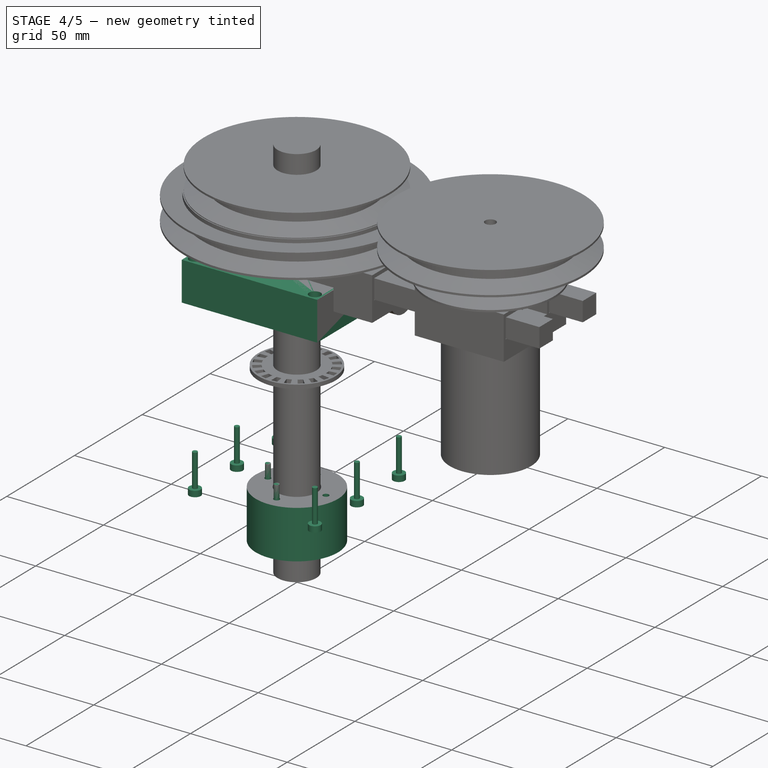
[diagram: stage 4 of 5 — iso view after this stage's code; geometry added in this stage tinted green]
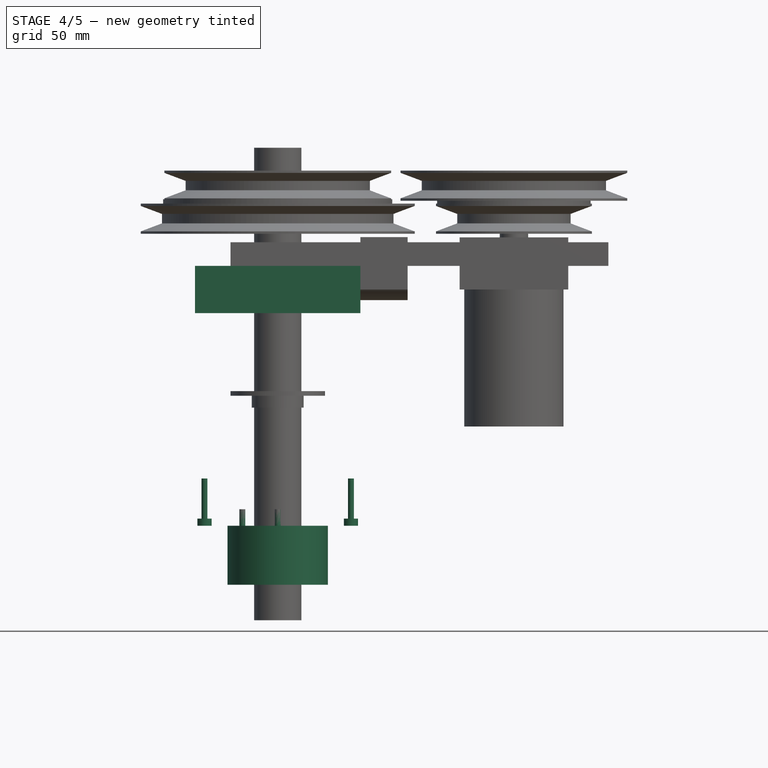
[diagram: stage 4 of 5 — front view after this stage's code; geometry added in this stage tinted green]
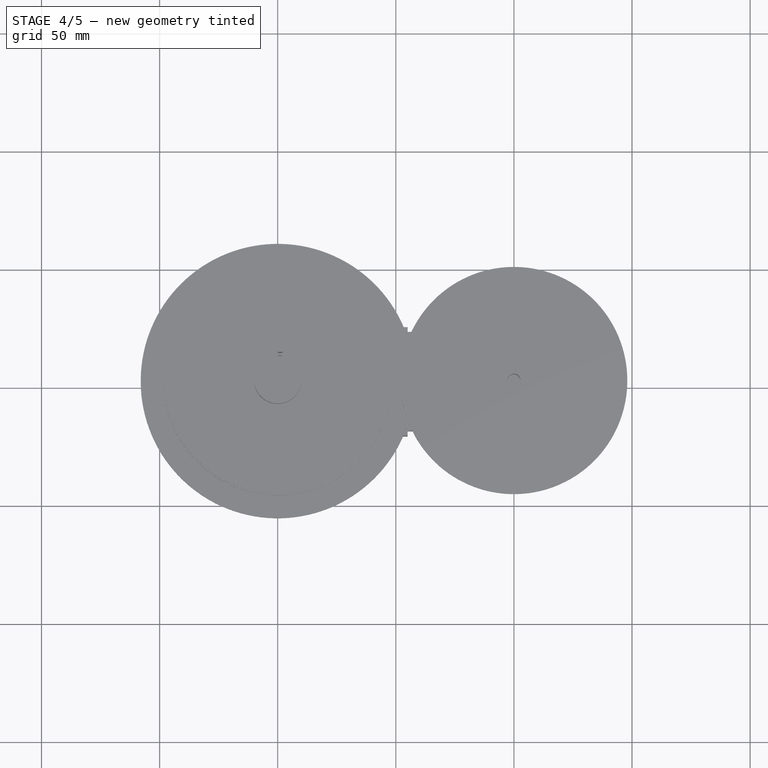
[diagram: stage 4 of 5 — top view after this stage's code; geometry added in this stage tinted green]
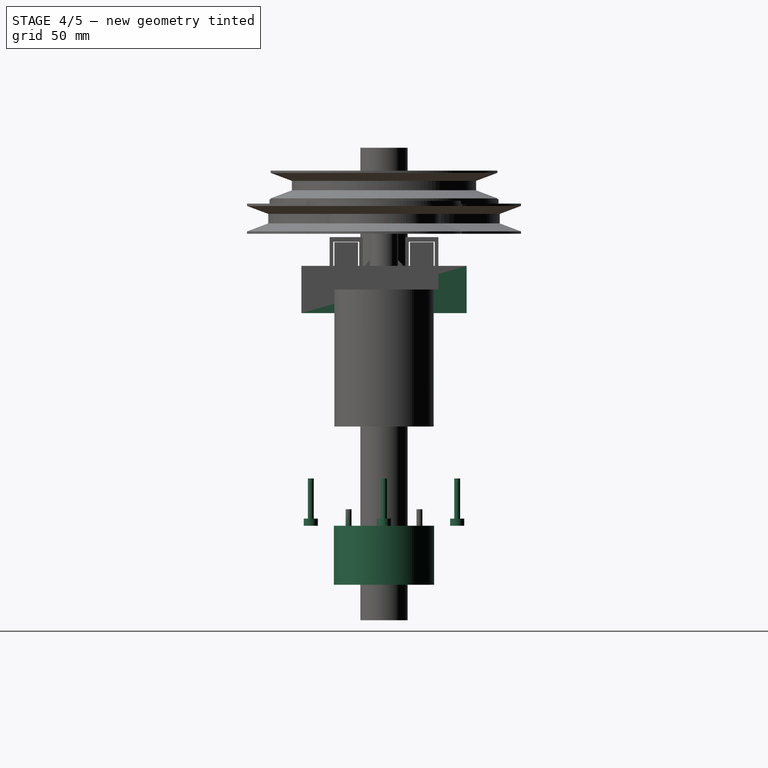
[diagram: stage 4 of 5 — right view after this stage's code; geometry added in this stage tinted green]
FEATURE [Part::Cylinder] Cylinder013  label="Zylinder013"
  Angle = 360
  AttacherType = Attacher::AttachEngine3D
  Height = 7
  Placement = pos=(-15,0,0) rot=(0,0,1;0rad)
  Radius = 1.25
FEATURE [Part::Cylinder] Cylinder014  label="Zylinder014"
  Angle = 360
  AttacherType = Attacher::AttachEngine3D
  Height = 7
  Placement = pos=(0,15,0) rot=(0,0,1;0rad)
  Radius = 1.25
FEATURE [Part::Cylinder] Cylinder015  label="Zylinder015"
  Angle = 360
  AttacherType = Attacher::AttachEngine3D
  Height = 7
  Placement = pos=(0,-15,0) rot=(0,0,1;0rad)
  Radius = 1.25
FEATURE [Part::Cylinder] Cylinder016  label="Zylinder016"
  Angle = 360
  AttacherType = Attacher::AttachEngine3D
  Height = 20
  Placement = pos=(31,31,0) rot=(0,0,1;0rad)
  Radius = 1.25
FEATURE [Part::Cylinder] Cylinder017  label="Zylinder017"
  Angle = 360
  AttacherType = Attacher::AttachEngine3D
  Height = 20
  Placement = pos=(31,0,0) rot=(0,0,1;0rad)
  Radius = 1.25
FEATURE [Part::Cylinder] Cylinder018  label="Zylinder018"
  Angle = 360
  AttacherType = Attacher::AttachEngine3D
  Height = 20
  Placement = pos=(31,-31,0) rot=(0,0,1;0rad)
  Radius = 1.25
FEATURE [Part::Cylinder] Cylinder019  label="Zylinder019"
  Angle = 360
  AttacherType = Attacher::AttachEngine3D
  Height = 20
  Placement = pos=(-31,31,0) rot=(0,0,1;0rad)
  Radius = 1.25
FEATURE [Part::Cylinder] Cylinder020  label="Zylinder020"
  Angle = 360
  AttacherType = Attacher::AttachEngine3D
  Height = 20
  Placement = pos=(-31,-31,0) rot=(0,0,1;0rad)
  Radius = 1.25
FEATURE [Part::Cylinder] Cylinder021  label="Zylinder021"
  Angle = 360
  AttacherType = Attacher::AttachEngine3D
  Height = 20
  Placement = pos=(-31,0,0) rot=(0,0,1;0rad)
  Radius = 1.25
FEATURE [Part::Cylinder] Cylinder022  label="Zylinder022"
  Angle = 360
  AttacherType = Attacher::AttachEngine3D
  Height = 3
  Placement = pos=(31,31,0) rot=(0,0,1;0rad)
  Radius = 3
FEATURE [Part::Cylinder] Cylinder023  label="Zylinder023"
  Angle = 360
  AttacherType = Attacher::AttachEngine3D
  Height = 3
  Placement = pos=(-31,31,0) rot=(0,0,1;0rad)
  Radius = 3
FEATURE [Part::Cylinder] Cylinder024  label="Zylinder024"
  Angle = 360
  AttacherType = Attacher::AttachEngine3D
  Height = 3
  Placement = pos=(-31,-31,0) rot=(0,0,1;0rad)
  Radius = 3
FEATURE [Part::Cylinder] Cylinder025  label="Zylinder025"
  Angle = 360
  AttacherType = Attacher::AttachEngine3D
  Height = 3
  Placement = pos=(31,-31,0) rot=(0,0,1;0rad)
  Radius = 3
FEATURE [Part::Cylinder] Cylinder026  label="Zylinder026"
  Angle = 360
  AttacherType = Attacher::AttachEngine3D
  Height = 3
  Placement = pos=(31,0,0) rot=(0,0,1;0rad)
  Radius = 3
FEATURE [Part::Cylinder] Cylinder027  label="Zylinder027"
  Angle = 360
  AttacherType = Attacher::AttachEngine3D
  Height = 3
  Placement = pos=(-31,0,0) rot=(0,0,1;0rad)
  Radius = 3
FEATURE [Part::Cylinder] Cylinder028  label="Zylinder028"
  Angle = 360
  AttacherType = Attacher::AttachEngine3D
  Height = 13
  Placement = pos=(0,0,7) rot=(0,0,1;0rad)
  Radius = 26
FEATURE [Part::Box] Box013  label="Würfel013"
  AttacherType = Attacher::AttachEngine3D
  Height = 20
  Length = 70
  Placement = pos=(-35,-35,0) rot=(0,0,1;0rad)
  Width = 70
FEATURE [Part::Cylinder] Cylinder029  label="Zylinder029"
  Angle = 360
  AttacherType = Attacher::AttachEngine3D
  Height = 20
  Radius = 10
FEATURE [Part::Cut] Cut017
  Base = -> Box013
  Tool = -> Cylinder029
FEATURE [Part::Cut] Cut014
  Base = -> Cut017
  Tool = -> Cylinder028
FEATURE [Part::Cylinder] Cylinder030  label="Zylinder030"
  Angle = 360
  AttacherType = Attacher::AttachEngine3D
  Height = 7
  Placement = pos=(15,0,0) rot=(0,0,1;0rad)
  Radius = 1.25
FEATURE [Part::Cylinder] Cylinder031  label="Zylinder031"
  Angle = 360
  AttacherType = Attacher::AttachEngine3D
  Height = 7
  Placement = pos=(-15,0,0) rot=(0,0,1;0rad)
  Radius = 1.25
FEATURE [Part::Cylinder] Cylinder032  label="Zylinder032"
  Angle = 360
  AttacherType = Attacher::AttachEngine3D
  Height = 7
  Placement = pos=(0,15,0) rot=(0,0,1;0rad)
  Radius = 1.25
FEATURE [Part::Cylinder] Cylinder033  label="Zylinder033"
  Angle = 360
  AttacherType = Attacher::AttachEngine3D
  Height = 7
  Placement = pos=(0,-15,0) rot=(0,0,1;0rad)
  Radius = 1.25
FEATURE [Part::MultiFuse] Fusion007
  Shapes = -> [Cylinder030,Cylinder031,Cylinder033,Cylinder032]
FEATURE [Part::Cut] Cut016
  Base = -> Cut014
  Tool = -> Fusion007
FEATURE [Part::Cylinder] Cylinder034  label="Zylinder034"
  Angle = 360
  AttacherType = Attacher::AttachEngine3D
  Height = 20
  Placement = pos=(31,31,0) rot=(0,0,1;0rad)
  Radius = 1.25
FEATURE [Part::Cylinder] Cylinder035  label="Zylinder035"
  Angle = 360
  AttacherType = Attacher::AttachEngine3D
  Height = 20
  Placement = pos=(31,0,0) rot=(0,0,1;0rad)
  Radius = 1.25
FEATURE [Part::Cylinder] Cylinder036  label="Zylinder036"
  Angle = 360
  AttacherType = Attacher::AttachEngine3D
  Height = 20
  Placement = pos=(31,-31,0) rot=(0,0,1;0rad)
  Radius = 1.25
FEATURE [Part::Cylinder] Cylinder037  label="Zylinder037"
  Angle = 360
  AttacherType = Attacher::AttachEngine3D
  Height = 20
  Placement = pos=(-31,31,0) rot=(0,0,1;0rad)
  Radius = 1.25
FEATURE [Part::Cylinder] Cylinder038  label="Zylinder038"
  Angle = 360
  AttacherType = Attacher::AttachEngine3D
  Height = 20
  Placement = pos=(-31,-31,0) rot=(0,0,1;0rad)
  Radius = 1.25
FEATURE [Part::Cylinder] Cylinder039  label="Zylinder039"
  Angle = 360
  AttacherType = Attacher::AttachEngine3D
  Height = 20
  Placement = pos=(-31,0,0) rot=(0,0,1;0rad)
  Radius = 1.25
FEATURE [Part::MultiFuse] Fusion010
  Shapes = -> [Cylinder034,Cylinder037,Cylinder038,Cylinder036,Cylinder039,Cylinder035]
FEATURE [Part::Cylinder] Cylinder040  label="Zylinder040"
  Angle = 360
  AttacherType = Attacher::AttachEngine3D
  Height = 3
  Placement = pos=(31,31,0) rot=(0,0,1;0rad)
  Radius = 3
FEATURE [Part::Cylinder] Cylinder041  label="Zylinder041"
  Angle = 360
  AttacherType = Attacher::AttachEngine3D
  Height = 3
  Placement = pos=(-31,31,0) rot=(0,0,1;0rad)
  Radius = 3
FEATURE [Part::Cylinder] Cylinder042  label="Zylinder042"
  Angle = 360
  AttacherType = Attacher::AttachEngine3D
  Height = 3
  Placement = pos=(-31,-31,0) rot=(0,0,1;0rad)
  Radius = 3
FEATURE [Part::Cylinder] Cylinder043  label="Zylinder043"
  Angle = 360
  AttacherType = Attacher::AttachEngine3D
  Height = 3
  Placement = pos=(31,-31,0) rot=(0,0,1;0rad)
  Radius = 3
FEATURE [Part::Cylinder] Cylinder044  label="Zylinder044"
  Angle = 360
  AttacherType = Attacher::AttachEngine3D
  Height = 3
  Placement = pos=(31,0,0) rot=(0,0,1;0rad)
  Radius = 3
FEATURE [Part::Cylinder] Cylinder045  label="Zylinder045"
  Angle = 360
  AttacherType = Attacher::AttachEngine3D
  Height = 3
  Placement = pos=(-31,0,0) rot=(0,0,1;0rad)
  Radius = 3
FEATURE [Part::MultiFuse] Fusion008
  Shapes = -> [Cylinder040,Cylinder041,Cylinder045,Cylinder042,Cylinder043,Cylinder044]
FEATURE [Part::MultiFuse] Fusion009
  Shapes = -> [Fusion008,Fusion010]
FEATURE [Part::Cut] Cut015  label="top"
  Base = -> Cut016
  Placement = pos=(0,0,110) rot=(0,1,0;3.14159rad)
  Tool = -> Fusion009
FEATURE [Part::Cylinder] Cylinder053  label="Zylinder053"
  Angle = 360
  AttacherType = Attacher::AttachEngine3D
  Height = 5
  Placement = pos=(0,15,0) rot=(0,0,1;0rad)
  Radius = 3
FEATURE [Part::Cut] Cut026  label="clamp"
  Base = -> Cut025
  Placement = pos=(0,0,-25) rot=(0,0,1;0rad)
  Tool = -> Cylinder053
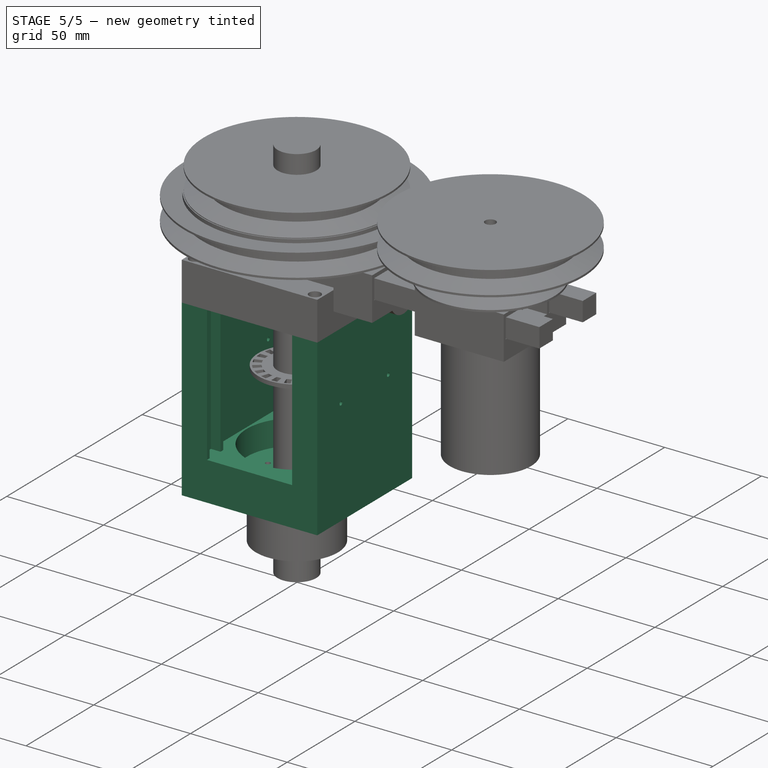
[diagram: stage 5 of 5 — iso view after this stage's code; geometry added in this stage tinted green]
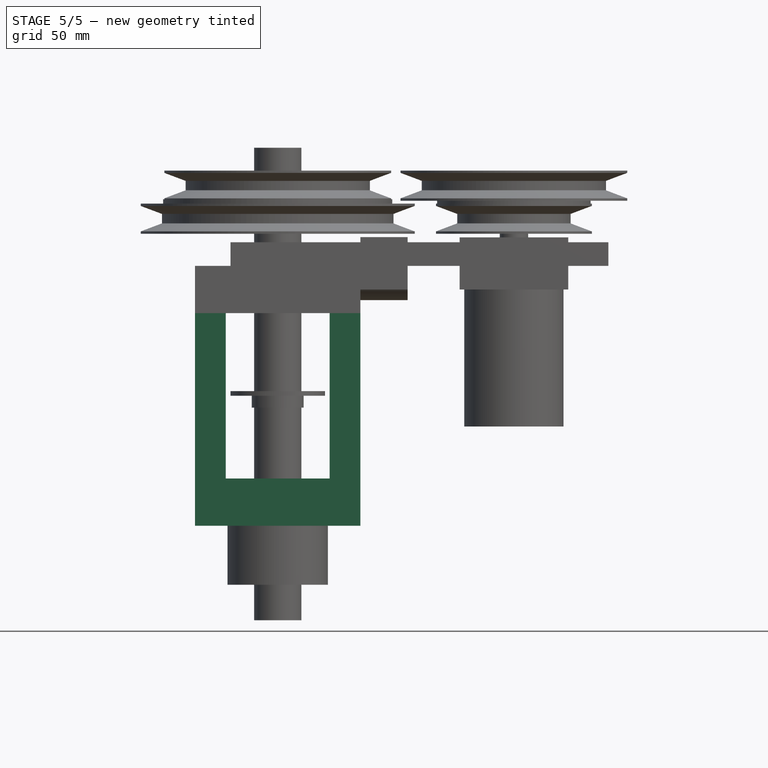
[diagram: stage 5 of 5 — front view after this stage's code; geometry added in this stage tinted green]
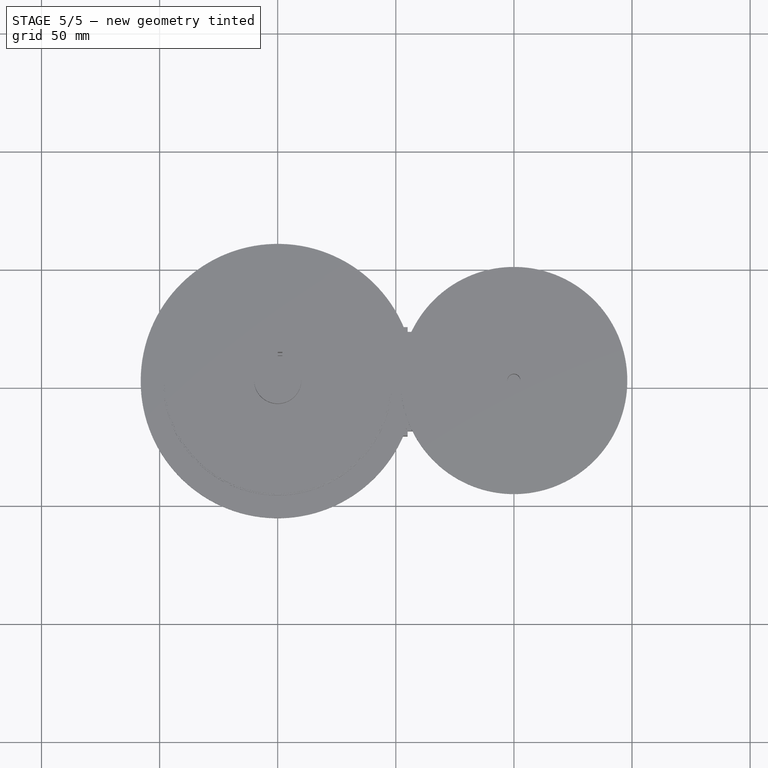
[diagram: stage 5 of 5 — top view after this stage's code; geometry added in this stage tinted green]
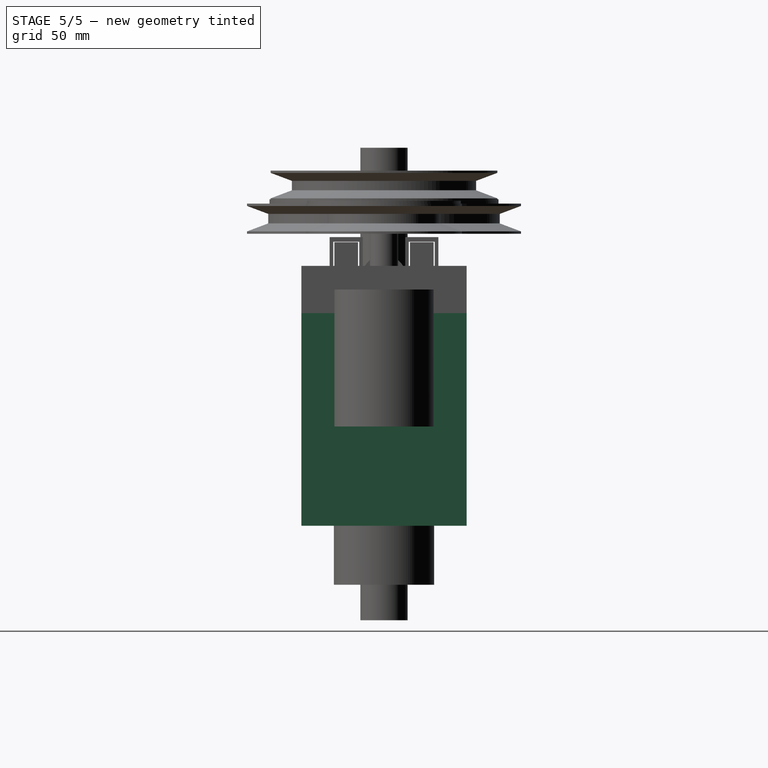
[diagram: stage 5 of 5 — right view after this stage's code; geometry added in this stage tinted green]
FEATURE [Part::Box] Box001  label="Würfel001"
  AttacherType = Attacher::AttachEngine3D
  Height = 70
  Length = 70
  Placement = pos=(1,1,0) rot=(0,0,1;0rad)
  Width = 8
FEATURE [Part::Cylinder] Cylinder  label="Zylinder"
  Angle = 360
  AttacherType = Attacher::AttachEngine3D
  Height = 70
  Placement = pos=(36,5,0) rot=(0,0,1;0rad)
  Radius = 1
FEATURE [Part::Cylinder] Cylinder001  label="Zylinder001"
  Angle = 360
  AttacherType = Attacher::AttachEngine3D
  Height = 70
  Placement = pos=(5,5,0) rot=(0,0,1;0rad)
  Radius = 1
FEATURE [Part::Cylinder] Cylinder002  label="Zylinder002"
  Angle = 360
  AttacherType = Attacher::AttachEngine3D
  Height = 70
  Placement = pos=(67,5,0) rot=(0,0,1;0rad)
  Radius = 1
FEATURE [Part::Box] Box  label="Würfel"
  AttacherType = Attacher::AttachEngine3D
  Height = 70
  Length = 2
  Placement = pos=(1,9,0) rot=(0,0,1;0rad)
  Width = 5
FEATURE [Part::Box] Box002  label="Würfel002"
  AttacherType = Attacher::AttachEngine3D
  Height = 70
  Length = 2
  Placement = pos=(11,9,0) rot=(0,0,1;0rad)
  Width = 5
FEATURE [Part::Box] Box003  label="Würfel003"
  AttacherType = Attacher::AttachEngine3D
  Height = 70
  Length = 2
  Placement = pos=(69,9,0) rot=(0,0,1;0rad)
  Width = 5
FEATURE [Part::Box] Box004  label="Würfel004"
  AttacherType = Attacher::AttachEngine3D
  Height = 70
  Length = 2
  Placement = pos=(59,9,0) rot=(0,0,1;0rad)
  Width = 5
FEATURE [Part::Cylinder] Cylinder003  label="Zylinder003"
  Angle = 360
  AttacherType = Attacher::AttachEngine3D
  Height = 8
  Placement = pos=(18.5,9,35) rot=(1,0,0;1.5708rad)
  Radius = 1
FEATURE [Part::Cylinder] Cylinder004  label="Zylinder004"
  Angle = 360
  AttacherType = Attacher::AttachEngine3D
  Height = 8
  Placement = pos=(53.5,9,35) rot=(1,0,0;1.5708rad)
  Radius = 1
FEATURE [Part::Cut] Cut
  Base = -> Box001
  Tool = -> Cylinder001
FEATURE [Part::Cut] Cut001
  Base = -> Cut
  Tool = -> Cylinder002
FEATURE [Part::Cut] Cut002
  Base = -> Cut001
  Tool = -> Cylinder
FEATURE [Part::Cut] Cut003
  Base = -> Cut002
  Tool = -> Cylinder003
FEATURE [Part::Cut] Cut004
  Base = -> Cut003
  Tool = -> Cylinder004
FEATURE [Part::MultiFuse] Fusion
  Shapes = -> [Box,Box003,Box004,Box002,Cut004]
FEATURE [Part::Box] Box007  label="Würfel007"
  AttacherType = Attacher::AttachEngine3D
  Height = 70
  Length = 70
  Placement = pos=(1,1,0) rot=(0,0,1;0rad)
  Width = 8
FEATURE [Part::Cylinder] Cylinder005  label="Zylinder005"
  Angle = 360
  AttacherType = Attacher::AttachEngine3D
  Height = 70
  Placement = pos=(36,5,0) rot=(0,0,1;0rad)
  Radius = 1
FEATURE [Part::Cylinder] Cylinder006  label="Zylinder006"
  Angle = 360
  AttacherType = Attacher::AttachEngine3D
  Height = 70
  Placement = pos=(67,5,0) rot=(0,0,1;0rad)
  Radius = 1
FEATURE [Part::Cylinder] Cylinder007  label="Zylinder007"
  Angle = 360
  AttacherType = Attacher::AttachEngine3D
  Height = 70
  Placement = pos=(5,5,0) rot=(0,0,1;0rad)
  Radius = 1
FEATURE [Part::Cut] Cut005
  Base = -> Box007
  Tool = -> Cylinder007
FEATURE [Part::Cut] Cut009
  Base = -> Cut005
  Tool = -> Cylinder006
FEATURE [Part::Cut] Cut007
  Base = -> Cut009
  Tool = -> Cylinder005
FEATURE [Part::Box] Box008  label="Würfel008"
  AttacherType = Attacher::AttachEngine3D
  Height = 70
  Length = 2
  Placement = pos=(1,9,0) rot=(0,0,1;0rad)
  Width = 5
FEATURE [Part::Box] Box009  label="Würfel009"
  AttacherType = Attacher::AttachEngine3D
  Height = 70
  Length = 2
  Placement = pos=(11,9,0) rot=(0,0,1;0rad)
  Width = 5
FEATURE [Part::Box] Box010  label="Würfel010"
  AttacherType = Attacher::AttachEngine3D
  Height = 70
  Length = 2
  Placement = pos=(69,9,0) rot=(0,0,1;0rad)
  Width = 5
FEATURE [Part::Box] Box011  label="Würfel011"
  AttacherType = Attacher::AttachEngine3D
  Height = 70
  Length = 2
  Placement = pos=(59,9,0) rot=(0,0,1;0rad)
  Width = 5
FEATURE [Part::Cylinder] Cylinder008  label="Zylinder008"
  Angle = 360
  AttacherType = Attacher::AttachEngine3D
  Height = 8
  Placement = pos=(18.5,9,35) rot=(1,0,0;1.5708rad)
  Radius = 1
FEATURE [Part::Cut] Cut006
  Base = -> Cut007
  Tool = -> Cylinder008
FEATURE [Part::Cylinder] Cylinder009  label="Zylinder009"
  Angle = 360
  AttacherType = Attacher::AttachEngine3D
  Height = 8
  Placement = pos=(53.5,9,35) rot=(1,0,0;1.5708rad)
  Radius = 1
FEATURE [Part::Cut] Cut008
  Base = -> Cut006
  Tool = -> Cylinder009
FEATURE [Part::MultiFuse] Fusion001
  Placement = pos=(72,72,0) rot=(0,0,1;3.14159rad)
  Shapes = -> [Box008,Box010,Box011,Box009,Cut008]
FEATURE [Part::MultiFuse] Fusion002  label="Sides"
  Placement = pos=(36,-36,20) rot=(0,0,1;1.5708rad)
  Shapes = -> [Fusion001,Fusion]
FEATURE [Part::Cylinder] Cylinder010  label="Zylinder010"
  Angle = 360
  AttacherType = Attacher::AttachEngine3D
  Height = 20
  Radius = 10
FEATURE [Part::Box] Box012  label="Würfel012"
  AttacherType = Attacher::AttachEngine3D
  Height = 20
  Length = 70
  Placement = pos=(-35,-35,0) rot=(0,0,1;0rad)
  Width = 70
FEATURE [Part::Cylinder] Cylinder011  label="Zylinder011"
  Angle = 360
  AttacherType = Attacher::AttachEngine3D
  Height = 13
  Placement = pos=(0,0,7) rot=(0,0,1;0rad)
  Radius = 26
FEATURE [Part::Cut] Cut012
  Base = -> Box012
  Tool = -> Cylinder010
FEATURE [Part::Cut] Cut011
  Base = -> Cut012
  Tool = -> Cylinder011
FEATURE [Part::Cylinder] Cylinder012  label="Zylinder012"
  Angle = 360
  AttacherType = Attacher::AttachEngine3D
  Height = 7
  Placement = pos=(15,0,0) rot=(0,0,1;0rad)
  Radius = 1.25
FEATURE [Part::MultiFuse] Fusion006
  Shapes = -> [Cylinder012,Cylinder013,Cylinder015,Cylinder014]
FEATURE [Part::Cut] Cut013
  Base = -> Cut011
  Tool = -> Fusion006
FEATURE [Part::MultiFuse] Fusion004
  Shapes = -> [Cylinder016,Cylinder019,Cylinder020,Cylinder018,Cylinder021,Cylinder017]
FEATURE [Part::MultiFuse] Fusion005
  Shapes = -> [Cylinder022,Cylinder023,Cylinder027,Cylinder024,Cylinder025,Cylinder026]
FEATURE [Part::MultiFuse] Fusion003
  Shapes = -> [Fusion005,Fusion004]
FEATURE [Part::Cut] Cut010  label="bottom"
  Base = -> Cut013
  Tool = -> Fusion003
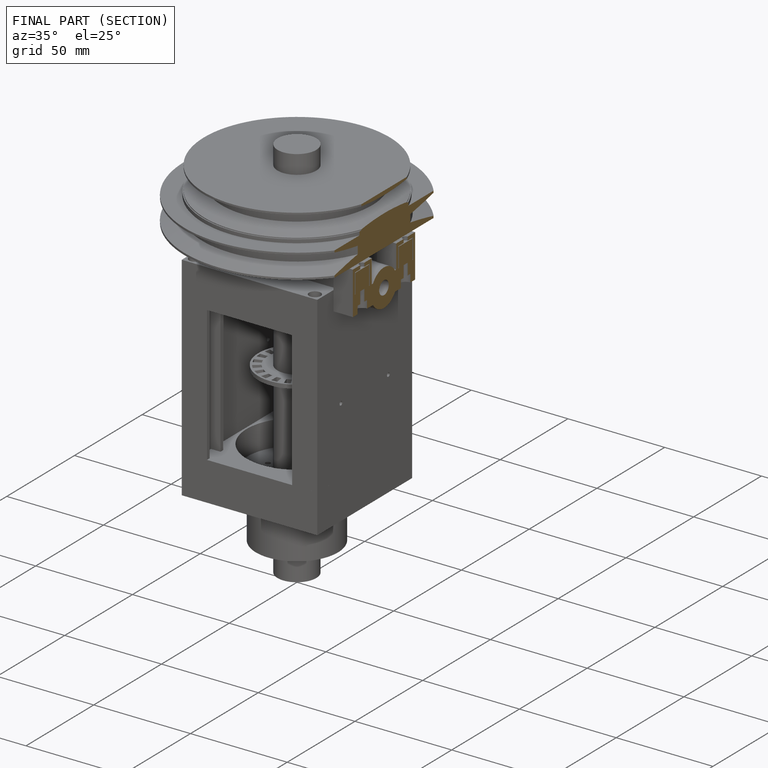
[diagram: finished part — half-section view (interior)]
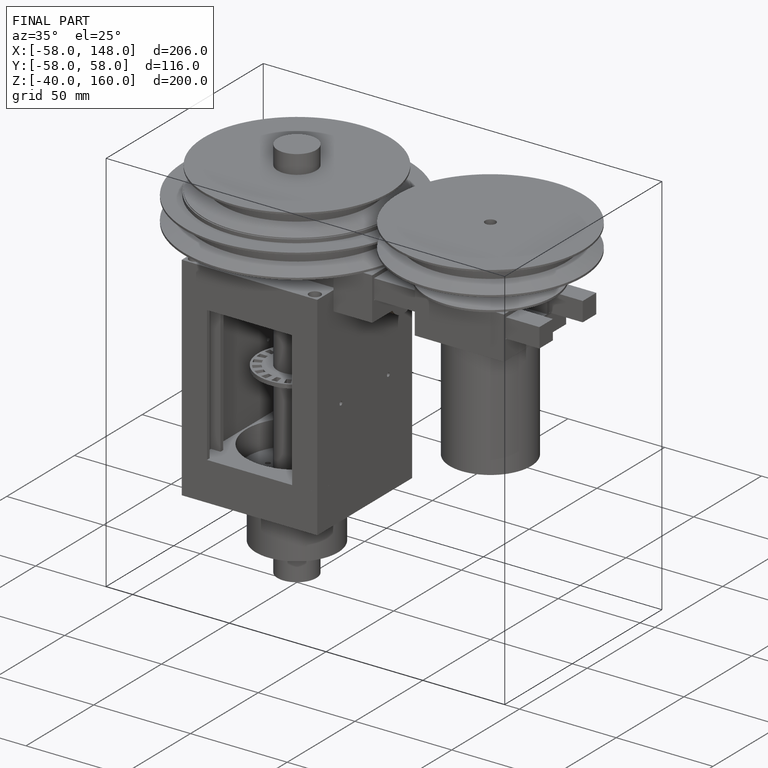
[diagram: finished part — iso view with bounding-box wireframe]
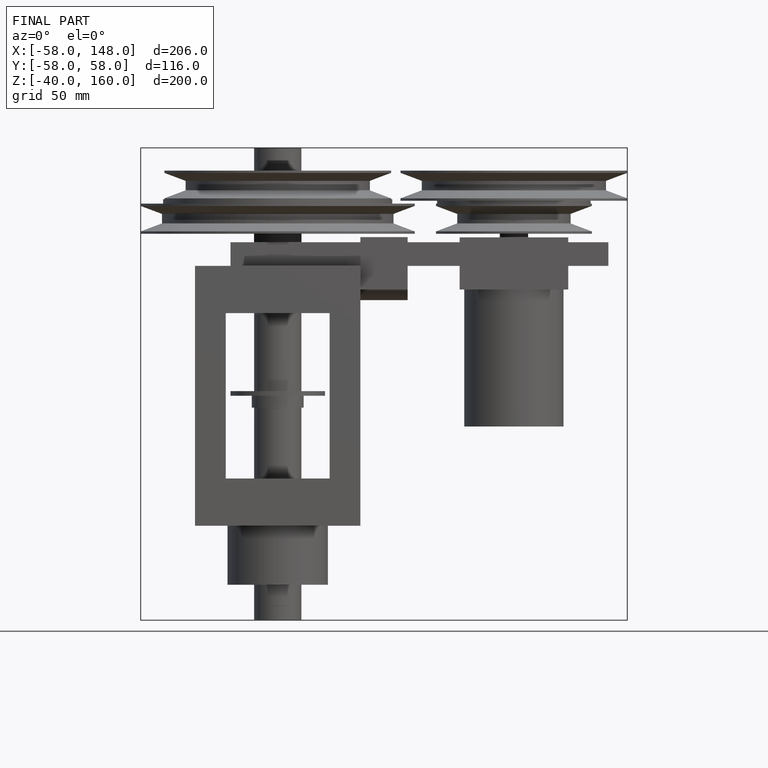
[diagram: finished part — front view with bounding-box wireframe]
